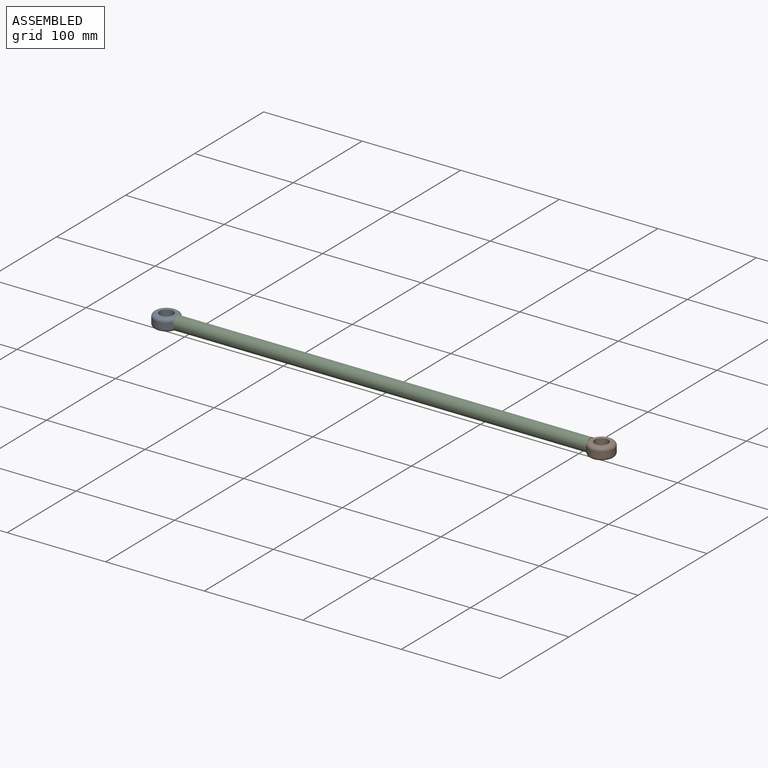
[diagram: assembled view]
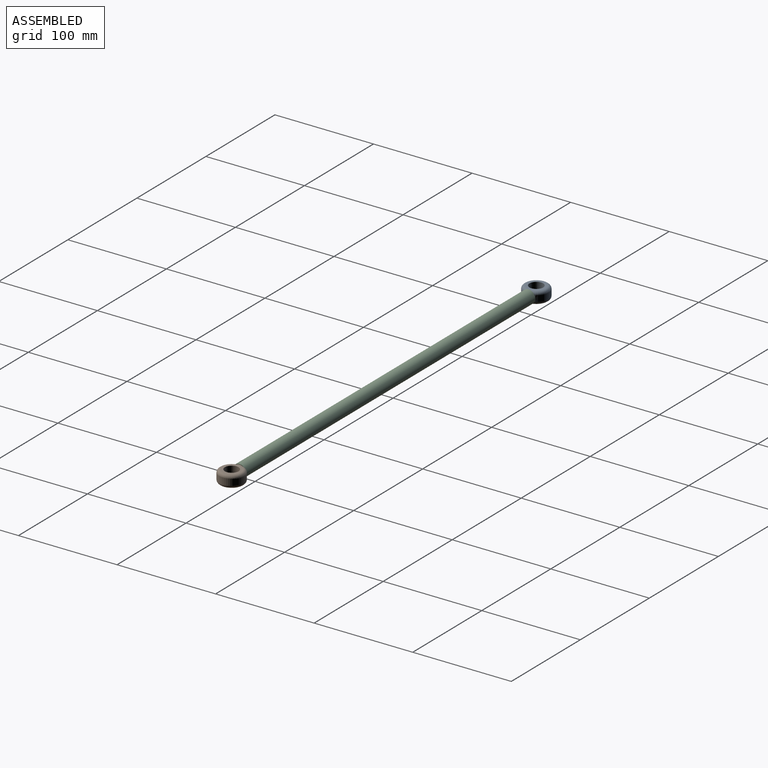
[diagram: assembled view, second angle]
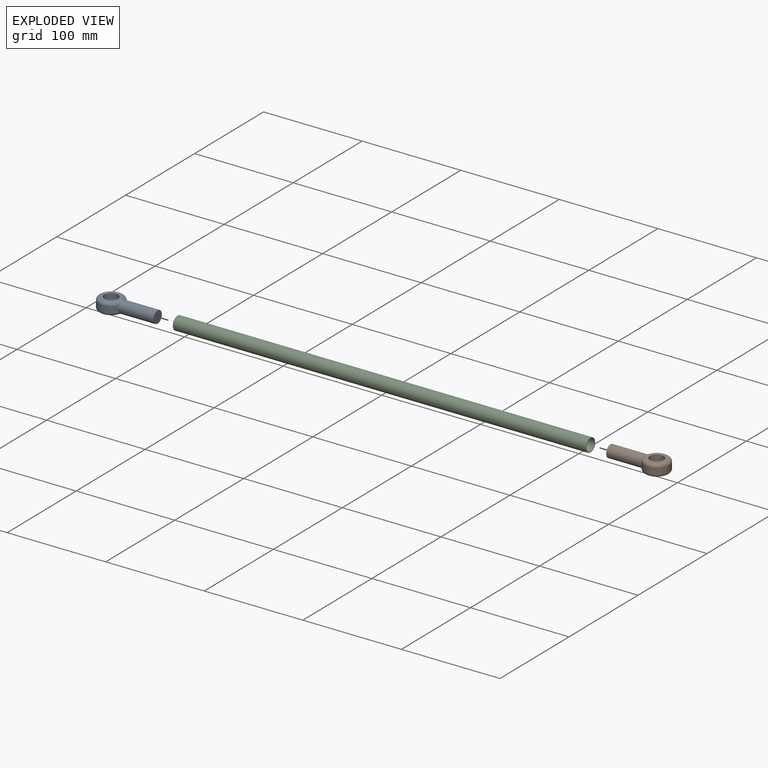
[diagram: exploded view]
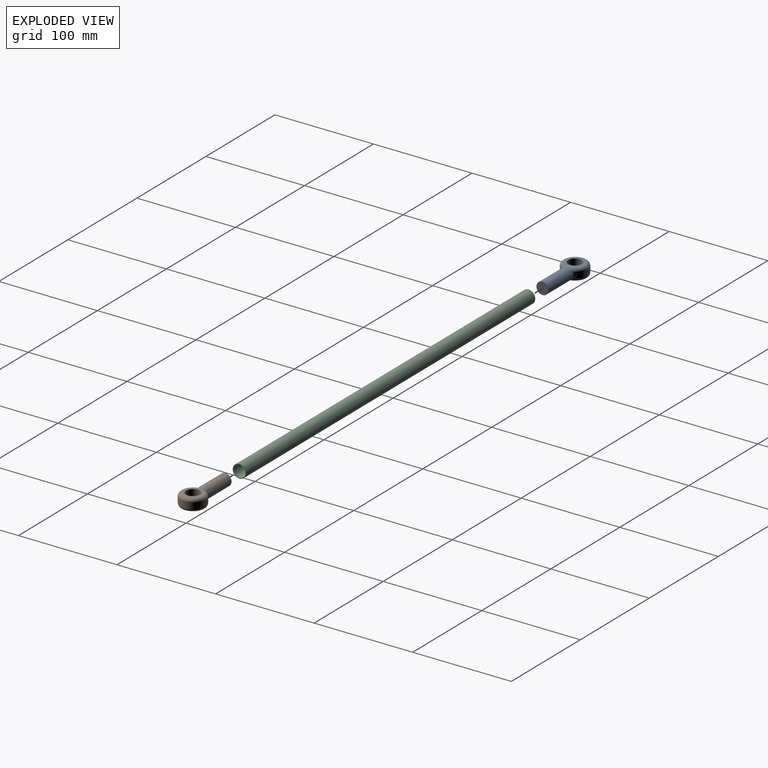
[diagram: exploded view, second angle]
ASSEMBLY  parts=3 mates=2
PART A: 13 faces, bbox 27.5x60.9x12.3 mm
  f0: plane 35.98x0.06mm, normal (1,0,0), area 2.1mm2, adj f1,f4,f8,f10
  f1: cylinder r=12.7mm len=25.4mm, axis (0,0,-1), area 398.6mm2, adj f0,f2,f7,f8,f9,f10,f11,f12
  f2: plane 36x0.06mm, normal (-1,0,0), area 2.1mm2, adj f1,f4,f7,f9
  f3: cylinder r=7mm len=14mm, axis (0,0,-1), area 538.8mm2, adj f5,f6
  f4: plane 12.25x12.25mm, normal (0,-1,0), area 118.2mm2, adj f0,f2,f5,f6,f7,f8,f9,f10
  f5: plane 56.64x19.05mm, normal (0,0,1), area 133.3mm2, adj f3,f4,f9,f10,f12
  f6: plane 56.64x19.05mm, normal (0,0,-1), area 133.3mm2, adj f3,f4,f7,f8,f11
  f7: cylinder r=6.1mm len=37.59mm, axis (0,-1,0), area 344.8mm2, adj f1,f2,f4,f6,f11
  f8: cylinder r=6.1mm len=37.59mm, axis (0,1,0), area 344.7mm2, adj f0,f1,f4,f6,f11
  f9: cylinder r=6.1mm len=37.59mm, axis (0,1,0), area 344.8mm2, adj f1,f2,f4,f5,f12
  f10: cylinder r=6.1mm len=37.59mm, axis (0,-1,0), area 344.7mm2, adj f0,f1,f4,f5,f12
  f11: torus R=9.53mm, axis (0,0,1), area 330.6mm2, adj f1,f6,f7,f8
  f12: torus R=9.53mm, axis (0,0,1), area 330.6mm2, adj f1,f5,f9,f10
PART B: same geometry as A
PART C: 4 faces, bbox 419.1x13.5x13.5 mm
  f0: cylinder r=6.12mm len=419.1mm, axis (1,0,0), area 16128.9mm2, adj f1,f2
  f1: plane 13.5x13.5mm, normal (-1,0,0), area 25.3mm2, adj f0,f3
  f2: plane 13.5x13.5mm, normal (1,0,0), area 25.3mm2, adj f0,f3
  f3: cylinder r=6.75mm len=419.1mm, axis (1,0,0), area 17774.7mm2, adj f1,f2
PLACE A rot(axis=(0,0,1),90deg) t=(-14.83,94.92,-42.04)mm
PLACE B rot(axis=(0,0,-1),90deg) t=(426.51,94.88,-42.04)mm
PLACE C t=(-3.71,94.9,-35.91)mm
MATE fastened A.f4 <-> C.f0  axis (1,0,0) through (32.29,94.9,-35.91)mm
MATE fastened B.f4 <-> C.f0  axis (-1,0,0) through (379.39,94.9,-35.91)mm
